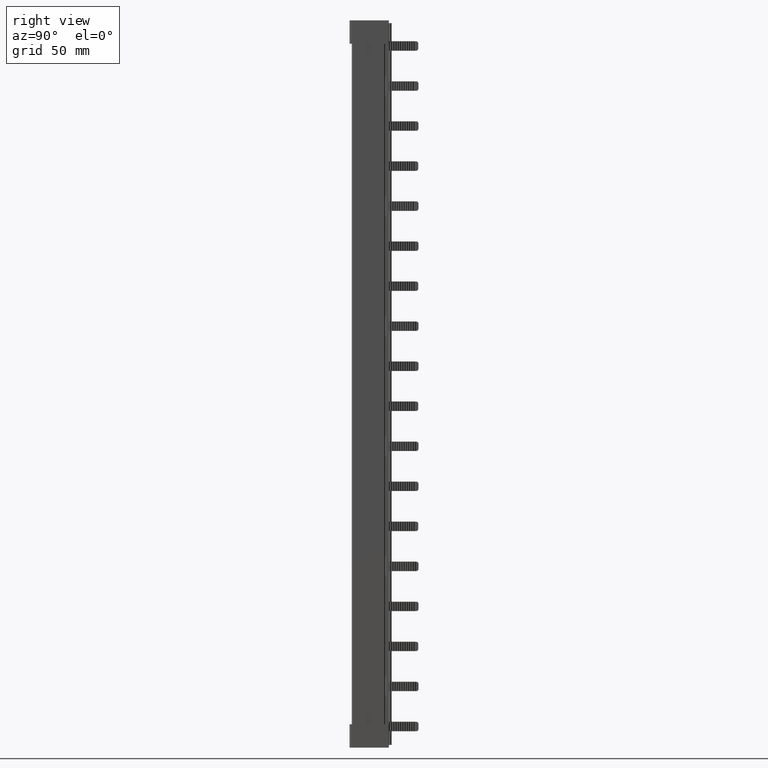
[diagram: clean part render]
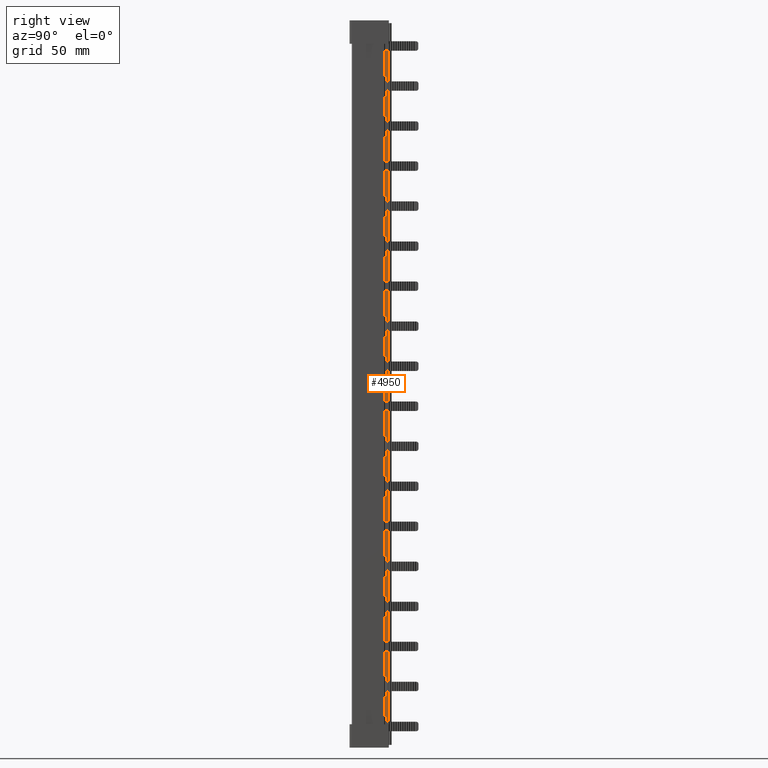
[diagram: same view with one face highlighted and labeled with its STEP entity id]
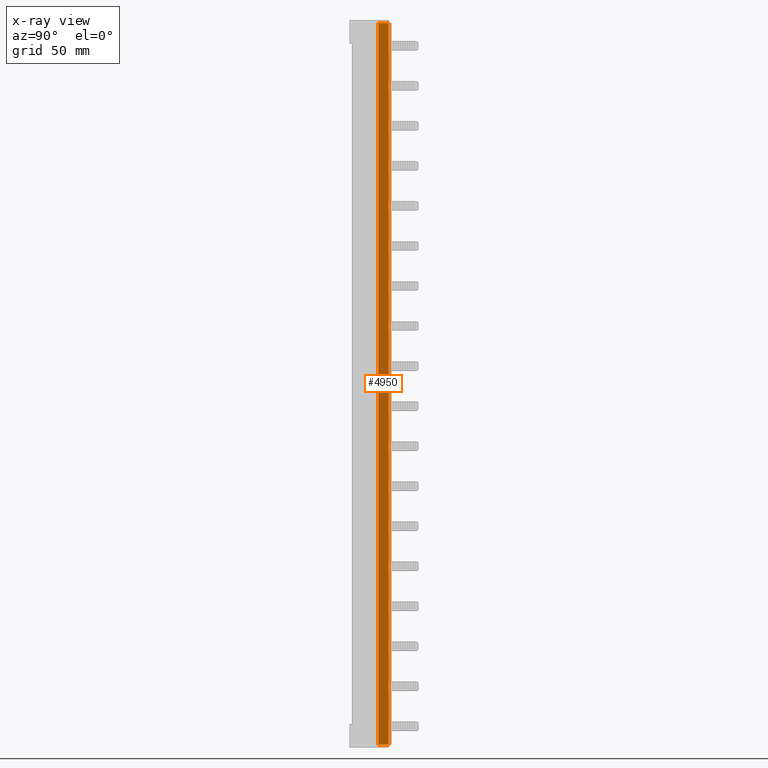
[diagram: x-ray of the same camera — body ghosted, the highlighted face saturated]
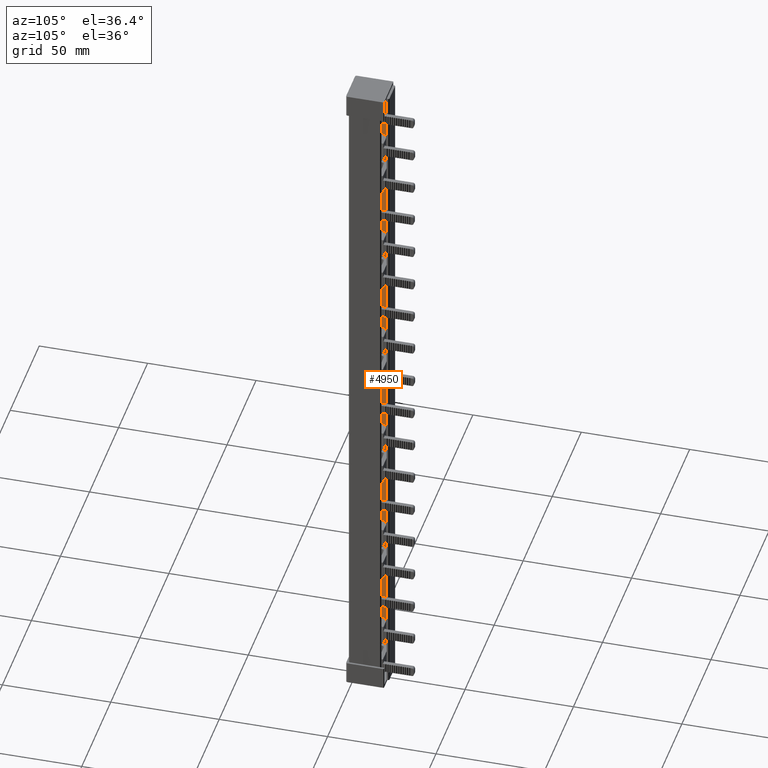
[diagram: same view with one face highlighted and labeled with its STEP entity id]
A machine part, right view. The second image highlights one B-rep face of the part: STEP entity #4950.
The next image is the same camera in x-ray: the body ghosted, the highlighted face saturated — about 0% of this face is hidden behind the body in this view.
A second angle (auxiliary view) of the same face is appended — the face is thin or edge-on in the first view.
In plain terms, the highlighted planar face has unit normal (1, -0, 0).
Its self-contained STEP definition (entity closure, byte-faithful):
#1026 = EDGE_CURVE ( 'NONE', #11800, #11827, #1671, .T. ) ;
#1056 = EDGE_CURVE ( 'NONE', #11827, #11809, #1743, .T. ) ;
#1059 = EDGE_CURVE ( 'NONE', #11809, #11823, #1749, .T. ) ;
#1111 = EDGE_CURVE ( 'NONE', #11823, #11800, #1911, .T. ) ;
#1671 = LINE ( 'NONE', #1684, #24209 ) ;
#1674 = DIRECTION ( 'NONE',  ( -0.0000000000000000000, -1.000000000000000000, -0.0000000000000000000 ) ) ;
#1684 = CARTESIAN_POINT ( 'NONE',  ( 0.4259999999999177800, 16.29999999999973100, 217.8000000000583300 ) ) ;
#1727 = DIRECTION ( 'NONE',  ( 0.0000000000000000000, -0.0000000000000000000, -1.000000000000000000 ) ) ;
#1743 = LINE ( 'NONE', #1746, #24224 ) ;
#1746 = CARTESIAN_POINT ( 'NONE',  ( 0.4259999999999175600, 11.89096289031699200, 1.189999999999990000 ) ) ;
#1749 = LINE ( 'NONE', #1781, #24249 ) ;
#1763 = DIRECTION ( 'NONE',  ( 0.0000000000000000000, 1.000000000000000000, 0.0000000000000000000 ) ) ;
#1781 = CARTESIAN_POINT ( 'NONE',  ( 0.4259999999999177800, 16.29999999999973100, -103.8000000000583600 ) ) ;
#1889 = DIRECTION ( 'NONE',  ( -0.0000000000000000000, 0.0000000000000000000, 1.000000000000000000 ) ) ;
#1911 = LINE ( 'NONE', #1933, #24282 ) ;
#1933 = CARTESIAN_POINT ( 'NONE',  ( 0.4259999999999177800, 16.44999999999995700, 1.189999999999990000 ) ) ;
#3008 = AXIS2_PLACEMENT_3D ( 'NONE', #32737, #32711, #32716 ) ;
#4950 = ADVANCED_FACE ( 'NONE', ( #32736 ), #32699, .T. ) ;
#10863 = ORIENTED_EDGE ( 'NONE', *, *, #1056, .T. ) ;
#10987 = ORIENTED_EDGE ( 'NONE', *, *, #1026, .T. ) ;
#10994 = ORIENTED_EDGE ( 'NONE', *, *, #1059, .T. ) ;
#11012 = ORIENTED_EDGE ( 'NONE', *, *, #1111, .T. ) ;
#11800 = VERTEX_POINT ( 'NONE', #16073 ) ;
#11809 = VERTEX_POINT ( 'NONE', #16066 ) ;
#11823 = VERTEX_POINT ( 'NONE', #16236 ) ;
#11827 = VERTEX_POINT ( 'NONE', #16230 ) ;
#16066 = CARTESIAN_POINT ( 'NONE',  ( 0.4259999999999177200, 11.89096289031699700, -103.8000000000583600 ) ) ;
#16073 = CARTESIAN_POINT ( 'NONE',  ( 0.4259999999999177800, 16.44999999999995300, 217.8000000000583300 ) ) ;
#16230 = CARTESIAN_POINT ( 'NONE',  ( 0.4259999999999177200, 11.89096289031699200, 217.8000000000578500 ) ) ;
#16236 = CARTESIAN_POINT ( 'NONE',  ( 0.4259999999999177800, 16.44999999999995700, -103.8000000000583600 ) ) ;
#24209 = VECTOR ( 'NONE', #1674, 1000.000000000000000 ) ;
#24224 = VECTOR ( 'NONE', #1727, 1000.000000000000000 ) ;
#24249 = VECTOR ( 'NONE', #1763, 1000.000000000000000 ) ;
#24282 = VECTOR ( 'NONE', #1889, 1000.000000000000000 ) ;
#28537 = EDGE_LOOP ( 'NONE', ( #10863, #10994, #11012, #10987 ) ) ;
#32699 = PLANE ( 'NONE',  #3008 ) ;
#32711 = DIRECTION ( 'NONE',  ( 1.000000000000000000, -7.134415533815864600E-017, 0.0000000000000000000 ) ) ;
#32716 = DIRECTION ( 'NONE',  ( 7.134415533815864600E-017, 1.000000000000000000, 0.0000000000000000000 ) ) ;
#32736 = FACE_OUTER_BOUND ( 'NONE', #28537, .T. ) ;
#32737 = CARTESIAN_POINT ( 'NONE',  ( 0.4259999999999174400, 11.89096289031699200, 1.189999999999990000 ) ) ;